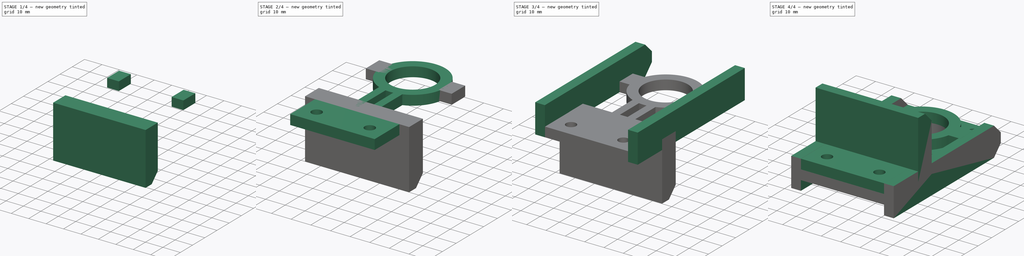
[diagram: build sequence overview — one tinted view per stage of 4, left to right]
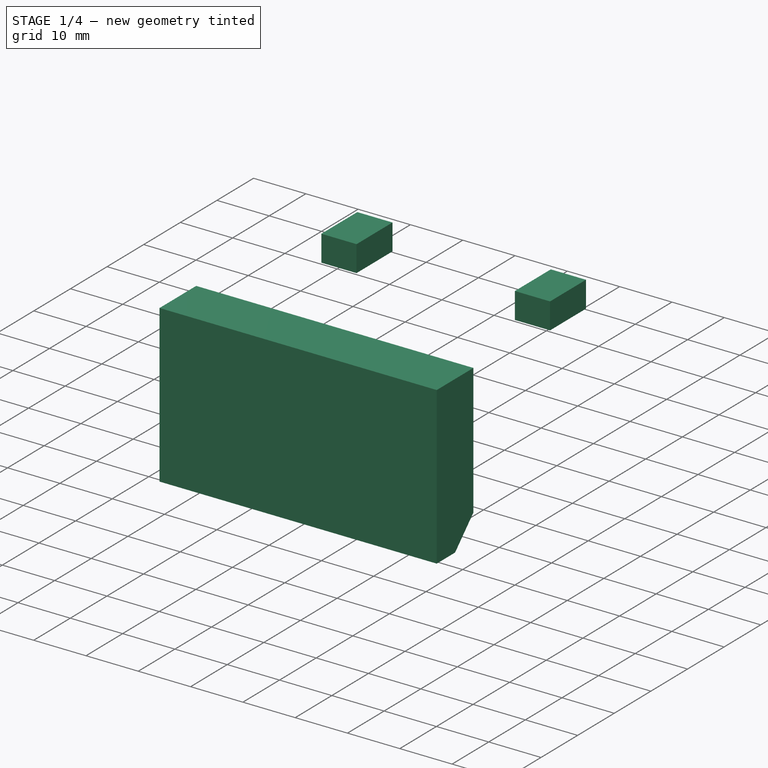
[diagram: stage 1 of 4 — iso view after this stage's code; geometry added in this stage tinted green]
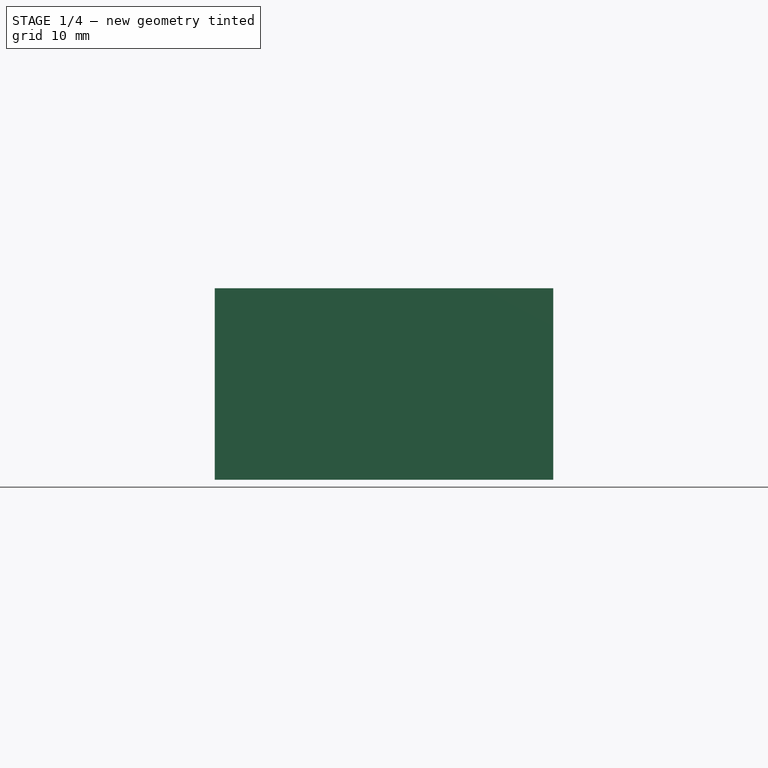
[diagram: stage 1 of 4 — front view after this stage's code; geometry added in this stage tinted green]
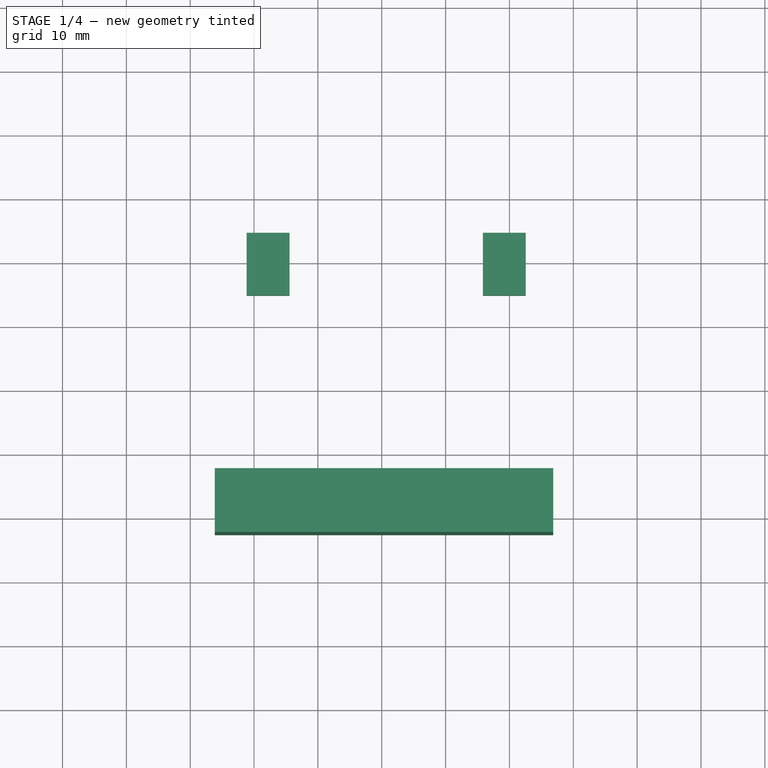
[diagram: stage 1 of 4 — top view after this stage's code; geometry added in this stage tinted green]
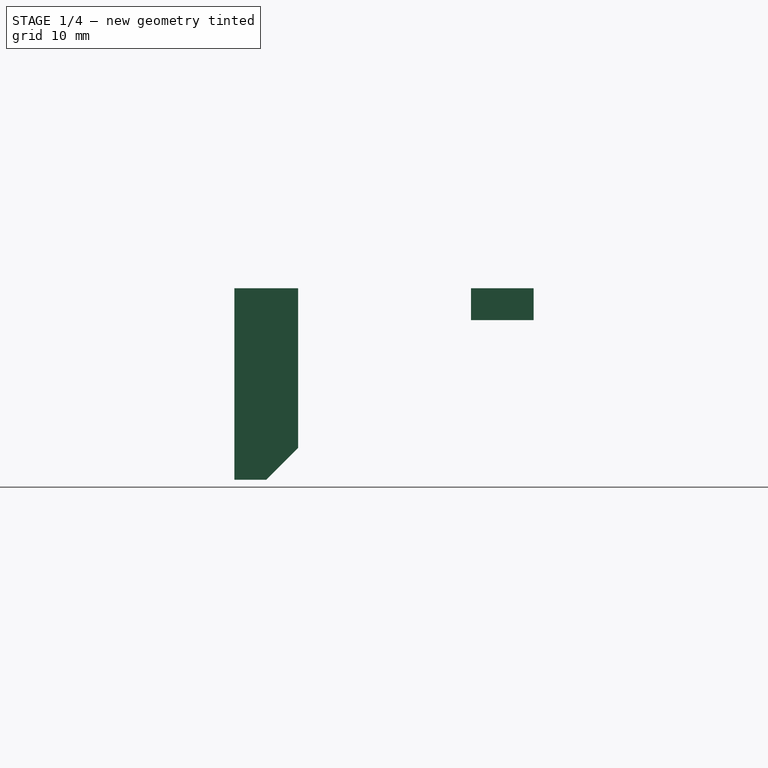
[diagram: stage 1 of 4 — right view after this stage's code; geometry added in this stage tinted green]
FCSTD DOCUMENT  (FreeCAD 0.16R6703 (Git))
Label: Z
License: All rights reserved
LicenseURL: http://en.wikipedia.org/wiki/All_rights_reserved
objects: Sketcher::SketchObject×9, PartDesign::Pad×9, PartDesign::Chamfer×3, Part::MultiFuse×1, Part::Mirroring×1
note: 32 computed .brp shape members not serialized (recipe doc carries the construction recipe); baked Part::Feature solids carry a one-line shape summary decoded from their .brp

FEATURE [Sketcher::SketchObject] Sketch006
  sketch-geometry (4):
    g0: LineSegment StartX=-26.1487 StartY=-12.5616 StartZ=0 EndX=26.8513 EndY=-12.5616 EndZ=0
    g1: LineSegment StartX=26.8513 StartY=-12.5616 StartZ=0 EndX=26.8513 EndY=-22.5616 EndZ=0
    g2: LineSegment StartX=26.8513 StartY=-22.5616 StartZ=0 EndX=-26.1487 EndY=-22.5616 EndZ=0
    g3: LineSegment StartX=-26.1487 StartY=-22.5616 StartZ=0 EndX=-26.1487 EndY=-12.5616 EndZ=0
  constraints (10):
    c: Coincident(g0,g1)
    c: Coincident(g1,g2)
    c: Coincident(g2,g3)
    c: Coincident(g3,g0)
    c: Horizontal(g0)
    c: Horizontal(g2)
    c: Vertical(g1)
    c: Vertical(g3)
    c: DistanceX(g0,g0) = 53
    c: DistanceY(g3,g3) = 10
FEATURE [PartDesign::Pad] Pad006
  Length = 30
  Length2 = 100
  Reversed = true
  Sketch = -> Sketch006
  Type = 0
FEATURE [PartDesign::Chamfer] Chamfer002
  Base = -> Pad006 [Edge4]
  Size = 5
FEATURE [Sketcher::SketchObject] Sketch007
  sketch-geometry (4):
    g0: LineSegment StartX=-21.1705 StartY=14.5133 StartZ=0 EndX=-14.4451 EndY=14.5133 EndZ=0
    g1: LineSegment StartX=-14.4451 StartY=14.5133 StartZ=0 EndX=-14.4451 EndY=24.319 EndZ=0
    g2: LineSegment StartX=-14.4451 StartY=24.319 StartZ=0 EndX=-21.1705 EndY=24.319 EndZ=0
    g3: LineSegment StartX=-21.1705 StartY=24.319 StartZ=0 EndX=-21.1705 EndY=14.5133 EndZ=0
  constraints (8):
    c: Coincident(g0,g1)
    c: Coincident(g1,g2)
    c: Coincident(g2,g3)
    c: Coincident(g3,g0)
    c: Horizontal(g0)
    c: Horizontal(g2)
    c: Vertical(g1)
    c: Vertical(g3)
FEATURE [PartDesign::Pad] Pad007
  Length = 5
  Length2 = 100
  Reversed = true
  Sketch = -> Sketch007
  Type = 0
FEATURE [Sketcher::SketchObject] Sketch008
  Placement = pos=(37,0,0) rot=(0,0,1;0rad)
  sketch-geometry (4):
    g0: LineSegment StartX=-21.1705 StartY=14.5133 StartZ=0 EndX=-14.4451 EndY=14.5133 EndZ=0
    g1: LineSegment StartX=-14.4451 StartY=14.5133 StartZ=0 EndX=-14.4451 EndY=24.319 EndZ=0
    g2: LineSegment StartX=-14.4451 StartY=24.319 StartZ=0 EndX=-21.1705 EndY=24.319 EndZ=0
    g3: LineSegment StartX=-21.1705 StartY=24.319 StartZ=0 EndX=-21.1705 EndY=14.5133 EndZ=0
  constraints (8):
    c: Coincident(g0,g1)
    c: Coincident(g1,g2)
    c: Coincident(g2,g3)
    c: Coincident(g3,g0)
    c: Horizontal(g0)
    c: Horizontal(g2)
    c: Vertical(g1)
    c: Vertical(g3)
FEATURE [PartDesign::Pad] Pad008
  Length = 5
  Length2 = 100
  Placement = pos=(37,0,0) rot=(0,0,1;0rad)
  Reversed = true
  Sketch = -> Sketch008
  Type = 0
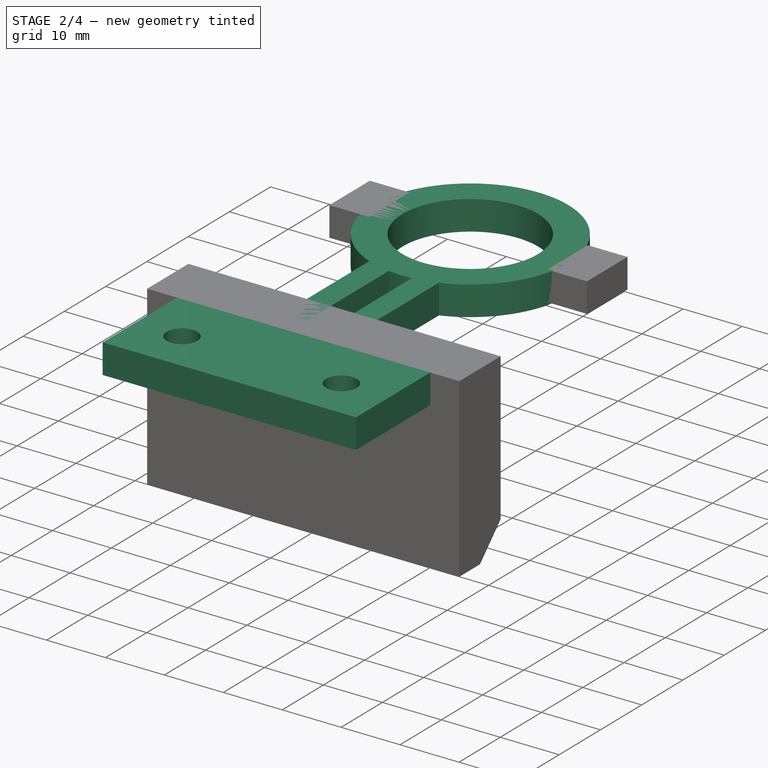
[diagram: stage 2 of 4 — iso view after this stage's code; geometry added in this stage tinted green]
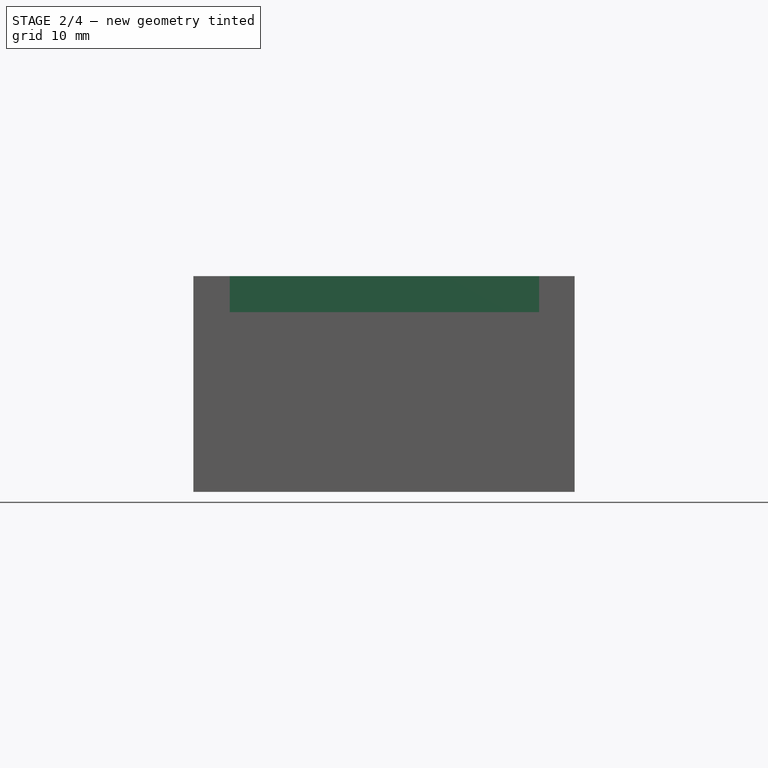
[diagram: stage 2 of 4 — front view after this stage's code; geometry added in this stage tinted green]
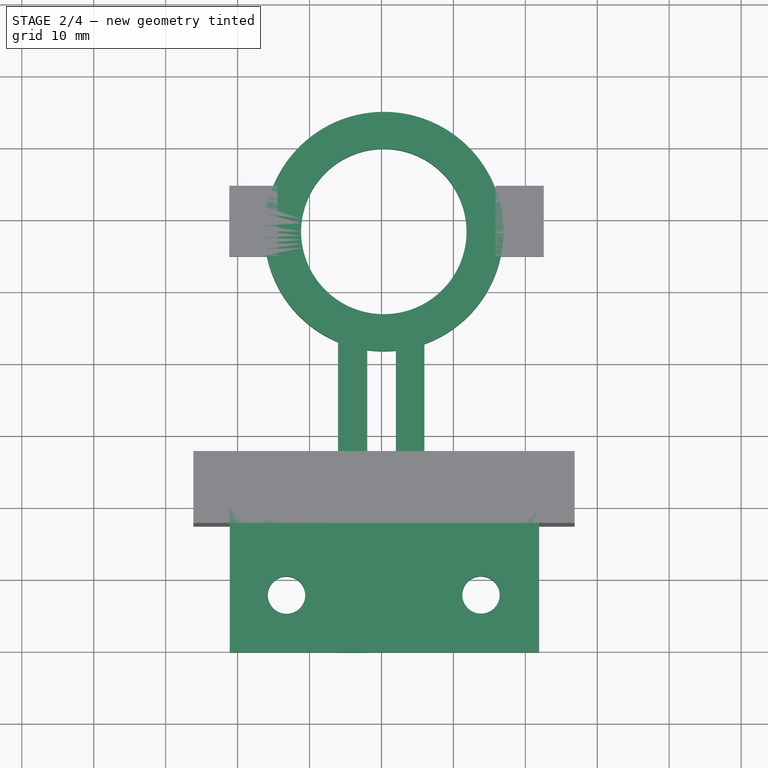
[diagram: stage 2 of 4 — top view after this stage's code; geometry added in this stage tinted green]
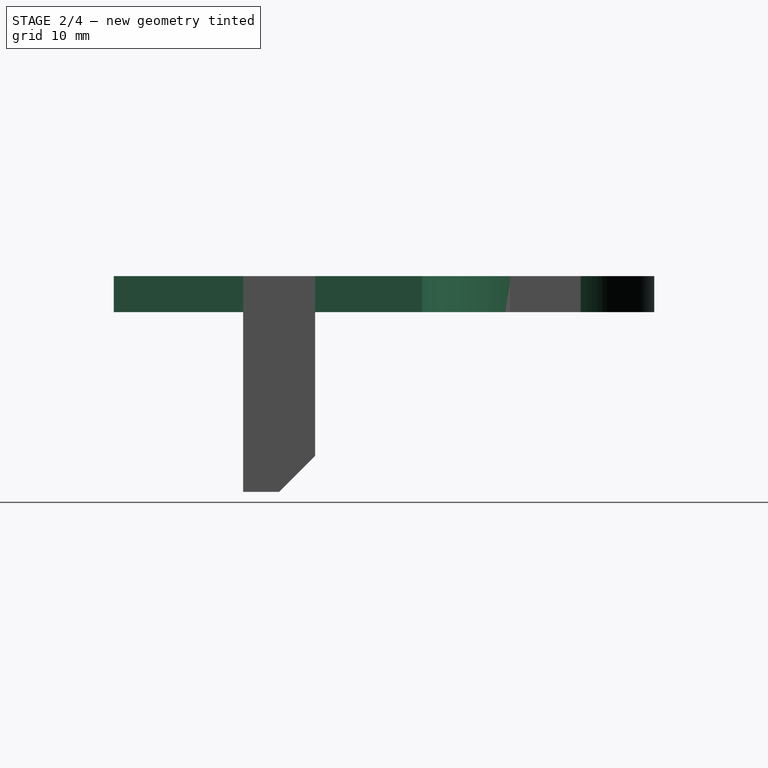
[diagram: stage 2 of 4 — right view after this stage's code; geometry added in this stage tinted green]
FEATURE [Sketcher::SketchObject] Sketch003
  sketch-geometry (2):
    g0: Circle CenterX=0.326646 CenterY=17.9679 CenterZ=0 NormalX=0 NormalY=0 NormalZ=1 Radius=11.501
    g1: Circle CenterX=0.326646 CenterY=17.9679 CenterZ=0 NormalX=0 NormalY=0 NormalZ=1 Radius=16.6305
  constraints (1):
    c: Coincident(g1,g0)
FEATURE [PartDesign::Pad] Pad003
  Length = 5
  Length2 = 100
  Reversed = true
  Sketch = -> Sketch003
  Type = 0
FEATURE [Sketcher::SketchObject] Sketch004
  sketch-geometry (8):
    g0: LineSegment StartX=-1.98552 StartY=4.72494 StartZ=0 EndX=-6.04366 EndY=4.72494 EndZ=0
    g1: LineSegment StartX=-6.04366 StartY=4.72494 StartZ=0 EndX=-6.04366 EndY=-40.5598 EndZ=0
    g2: LineSegment StartX=-6.04366 StartY=-40.5598 StartZ=0 EndX=-1.98552 EndY=-40.5598 EndZ=0
    g3: LineSegment StartX=-1.98552 StartY=-40.5598 StartZ=0 EndX=-1.98552 EndY=4.72494 EndZ=0
    g4: LineSegment StartX=2.00805 StartY=4.57408 StartZ=0 EndX=5.96279 EndY=4.57408 EndZ=0
    g5: LineSegment StartX=5.96279 StartY=4.57408 StartZ=0 EndX=5.96279 EndY=-40.5373 EndZ=0
    g6: LineSegment StartX=5.96279 StartY=-40.5373 StartZ=0 EndX=2.00805 EndY=-40.5373 EndZ=0
    g7: LineSegment StartX=2.00805 StartY=-40.5373 StartZ=0 EndX=2.00805 EndY=4.57408 EndZ=0
  constraints (16):
    c: Coincident(g0,g1)
    c: Coincident(g1,g2)
    c: Coincident(g2,g3)
    c: Coincident(g3,g0)
    c: Horizontal(g0)
    c: Horizontal(g2)
    c: Vertical(g1)
    c: Vertical(g3)
    c: Coincident(g4,g5)
    c: Coincident(g5,g6)
    c: Coincident(g6,g7)
    c: Coincident(g7,g4)
    c: Horizontal(g4)
    c: Horizontal(g6)
    c: Vertical(g5)
    c: Vertical(g7)
FEATURE [PartDesign::Pad] Pad004
  Length = 5
  Length2 = 100
  Reversed = true
  Sketch = -> Sketch004
  Type = 0
FEATURE [Sketcher::SketchObject] Sketch005
  sketch-geometry (6):
    g0: LineSegment StartX=-21.0883 StartY=-20.547 StartZ=0 EndX=21.9117 EndY=-20.547 EndZ=0
    g1: LineSegment StartX=21.9117 StartY=-20.547 StartZ=0 EndX=21.9117 EndY=-40.547 EndZ=0
    g2: LineSegment StartX=21.9117 StartY=-40.547 StartZ=0 EndX=-21.0883 EndY=-40.547 EndZ=0
    g3: LineSegment StartX=-21.0883 StartY=-40.547 StartZ=0 EndX=-21.0883 EndY=-20.547 EndZ=0
    g4: Circle CenterX=-13.1968 CenterY=-32.5843 CenterZ=0 NormalX=0 NormalY=0 NormalZ=1 Radius=2.59992
    g5: Circle CenterX=13.8359 CenterY=-32.5631 CenterZ=0 NormalX=0 NormalY=0 NormalZ=1 Radius=2.59992
  constraints (10):
    c: Coincident(g0,g1)
    c: Coincident(g1,g2)
    c: Coincident(g2,g3)
    c: Coincident(g3,g0)
    c: Horizontal(g0)
    c: Horizontal(g2)
    c: Vertical(g1)
    c: Vertical(g3)
    c: DistanceY(g3,g3) = 20
    c: DistanceX(g2,g2) = 43
FEATURE [PartDesign::Pad] Pad005
  Length = 5
  Length2 = 100
  Reversed = true
  Sketch = -> Sketch005
  Type = 0
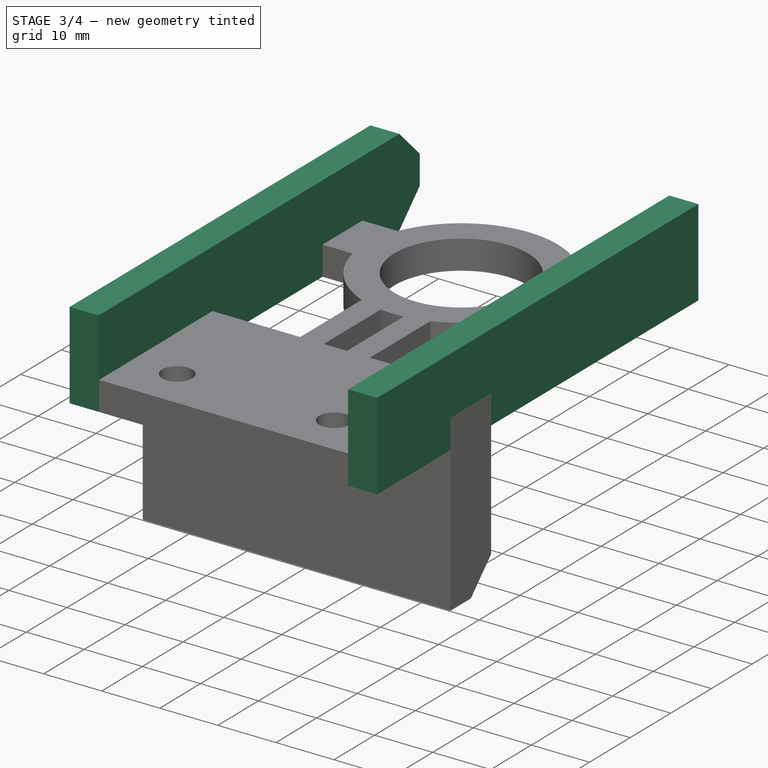
[diagram: stage 3 of 4 — iso view after this stage's code; geometry added in this stage tinted green]
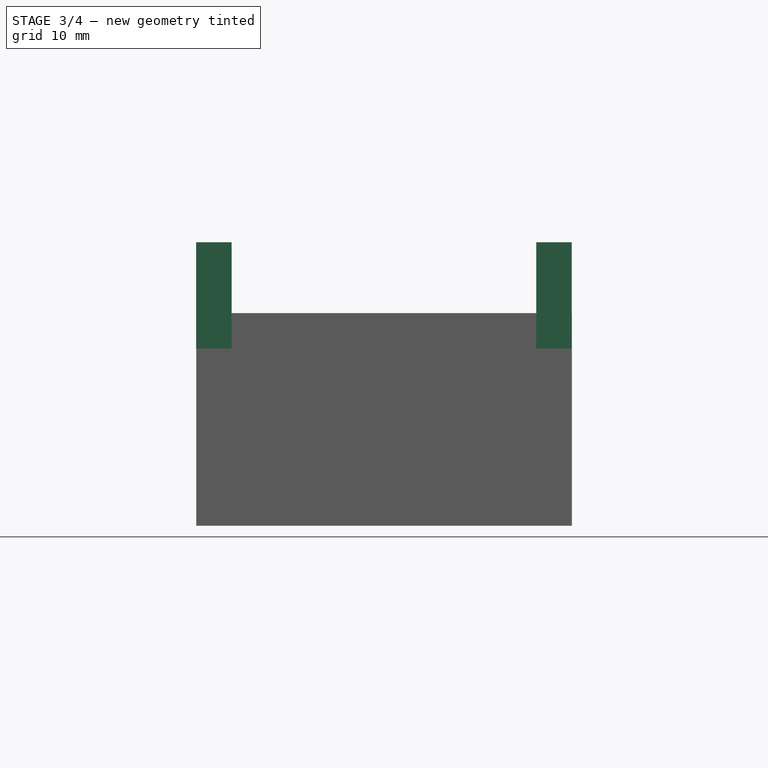
[diagram: stage 3 of 4 — front view after this stage's code; geometry added in this stage tinted green]
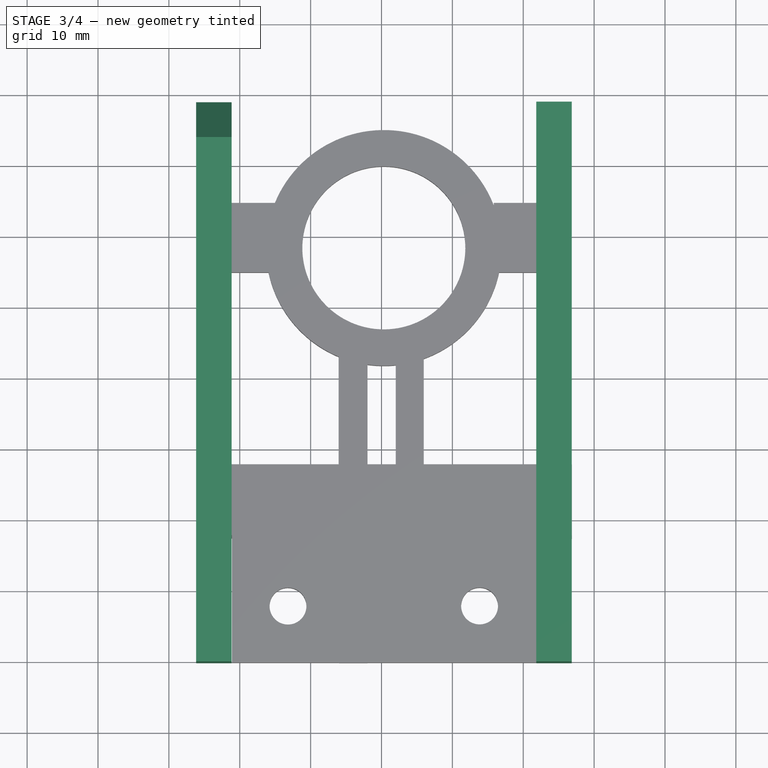
[diagram: stage 3 of 4 — top view after this stage's code; geometry added in this stage tinted green]
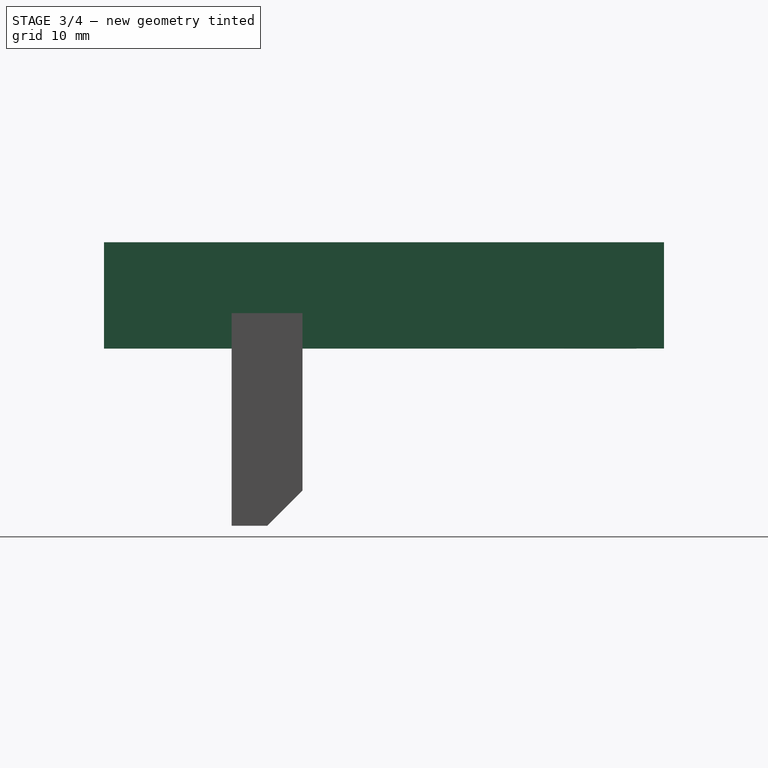
[diagram: stage 3 of 4 — right view after this stage's code; geometry added in this stage tinted green]
FEATURE [Sketcher::SketchObject] Sketch001
  Placement = pos=(21.835,0.031,0) rot=(0.57735,0.57735,0.57735;2.0944rad)
  sketch-geometry (4):
    g0: LineSegment StartX=-40.5987 StartY=-4.98938 StartZ=0 EndX=38.4013 EndY=-4.98938 EndZ=0
    g1: LineSegment StartX=38.4013 StartY=-4.98938 StartZ=0 EndX=38.4013 EndY=10.0106 EndZ=0
    g2: LineSegment StartX=38.4013 StartY=10.0106 StartZ=0 EndX=-40.5987 EndY=10.0106 EndZ=0
    g3: LineSegment StartX=-40.5987 StartY=10.0106 StartZ=0 EndX=-40.5987 EndY=-4.98938 EndZ=0
  constraints (10):
    c: Coincident(g0,g1)
    c: Coincident(g1,g2)
    c: Coincident(g2,g3)
    c: Coincident(g3,g0)
    c: Horizontal(g0)
    c: Horizontal(g2)
    c: Vertical(g1)
    c: Vertical(g3)
    c: DistanceX(g2,g2) = 79
    c: DistanceY(g3,g3) = 15
FEATURE [PartDesign::Pad] Pad001
  Length = 5
  Length2 = 100
  Placement = pos=(21.835,0.031,0) rot=(0.57735,0.57735,0.57735;2.0944rad)
  Sketch = -> Sketch001
  Type = 0
FEATURE [Sketcher::SketchObject] Sketch002
  Placement = pos=(-21.15,0.031,0) rot=(0.57735,0.57735,0.57735;2.0944rad)
  sketch-geometry (4):
    g0: LineSegment StartX=-40.5987 StartY=-4.98938 StartZ=0 EndX=38.4013 EndY=-4.98938 EndZ=0
    g1: LineSegment StartX=38.4013 StartY=-4.98938 StartZ=0 EndX=38.4013 EndY=10.0106 EndZ=0
    g2: LineSegment StartX=38.4013 StartY=10.0106 StartZ=0 EndX=-40.5987 EndY=10.0106 EndZ=0
    g3: LineSegment StartX=-40.5987 StartY=10.0106 StartZ=0 EndX=-40.5987 EndY=-4.98938 EndZ=0
  constraints (10):
    c: Coincident(g0,g1)
    c: Coincident(g1,g2)
    c: Coincident(g2,g3)
    c: Coincident(g3,g0)
    c: Horizontal(g0)
    c: Horizontal(g2)
    c: Vertical(g1)
    c: Vertical(g3)
    c: DistanceX(g2,g2) = 79
    c: DistanceY(g3,g3) = 15
FEATURE [PartDesign::Pad] Pad002
  Length = 5
  Length2 = 100
  Placement = pos=(-21.15,0.031,0) rot=(0.57735,0.57735,0.57735;2.0944rad)
  Reversed = true
  Sketch = -> Sketch002
  Type = 0
FEATURE [PartDesign::Chamfer] Chamfer001
  Base = -> Pad002 [Edge5,Edge2]
  Placement = pos=(-21.15,0.031,0) rot=(0.57735,0.57735,0.57735;2.0944rad)
  Size = 5
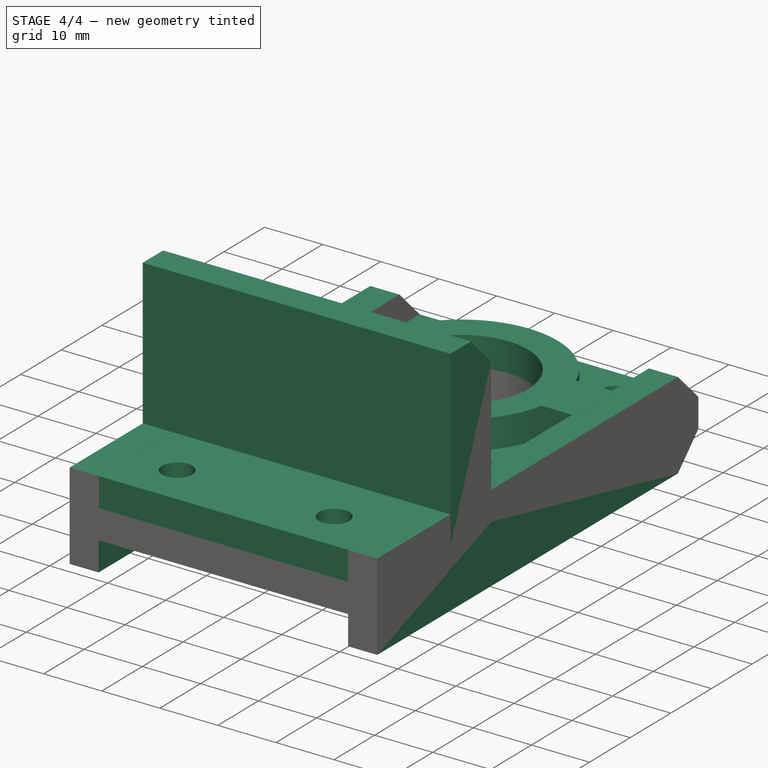
[diagram: stage 4 of 4 — iso view after this stage's code; geometry added in this stage tinted green]
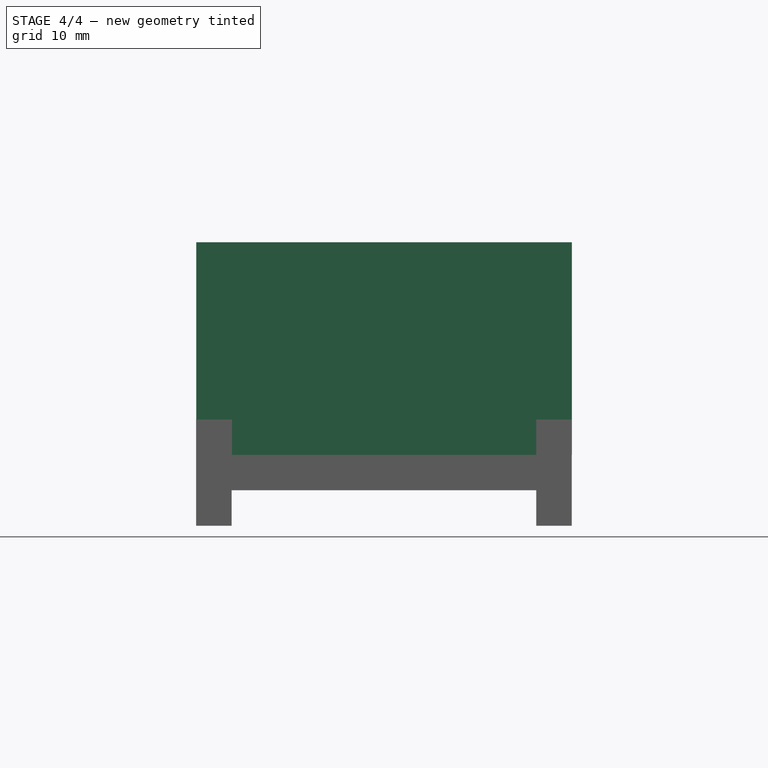
[diagram: stage 4 of 4 — front view after this stage's code; geometry added in this stage tinted green]
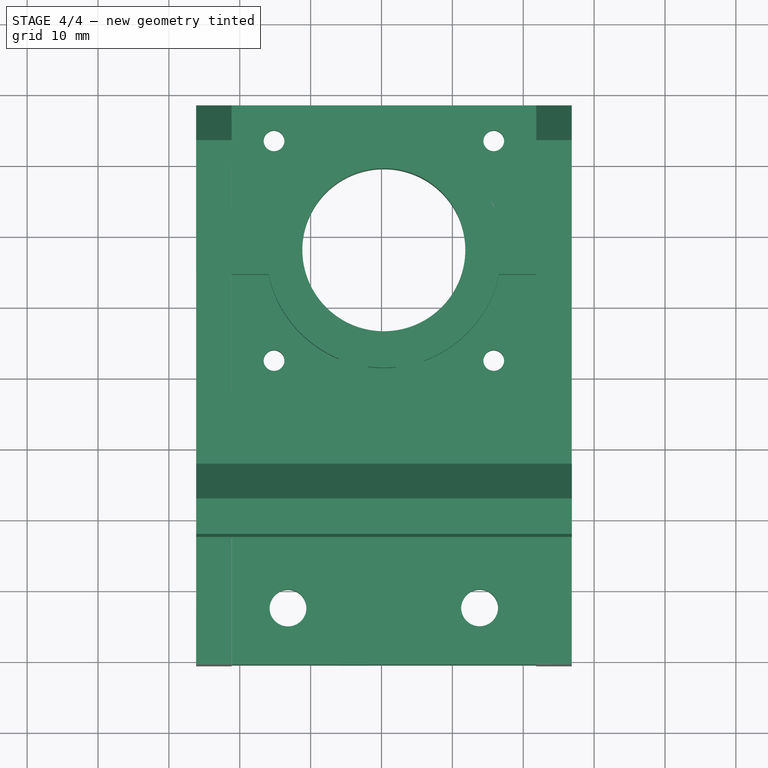
[diagram: stage 4 of 4 — top view after this stage's code; geometry added in this stage tinted green]
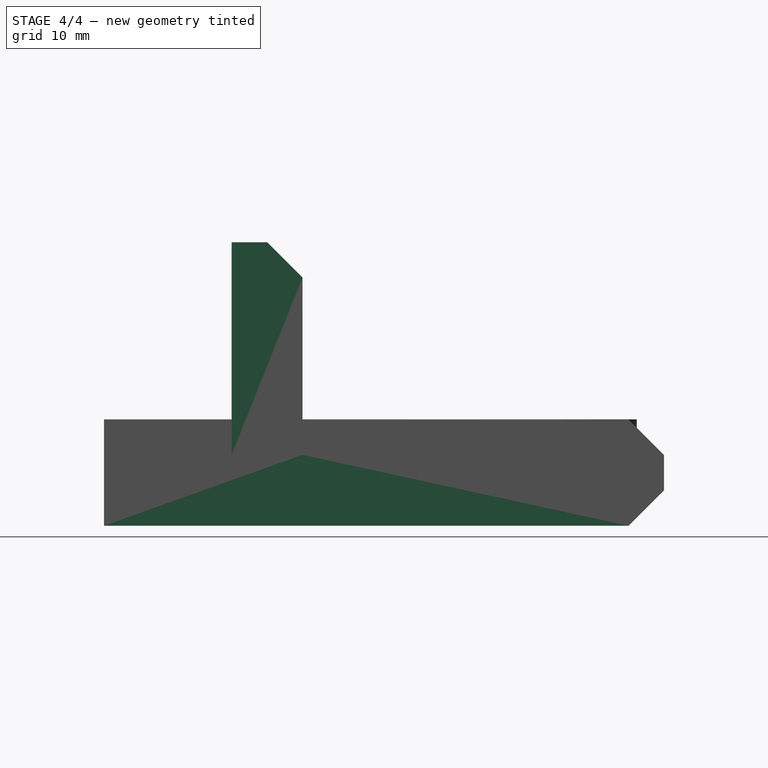
[diagram: stage 4 of 4 — right view after this stage's code; geometry added in this stage tinted green]
FEATURE [Sketcher::SketchObject] Sketch
  sketch-geometry (11):
    g0: LineSegment StartX=-21.1637 StartY=38.4323 StartZ=0 EndX=21.8363 EndY=38.4323 EndZ=0
    g1: LineSegment StartX=21.8363 StartY=38.4323 StartZ=0 EndX=21.8363 EndY=-40.5677 EndZ=0
    g2: LineSegment StartX=21.8363 StartY=-40.5677 StartZ=0 EndX=-21.1637 EndY=-40.5677 EndZ=0
    g3: LineSegment StartX=-21.1637 StartY=-40.5677 StartZ=0 EndX=-21.1637 EndY=38.4323 EndZ=0
    g4: Circle CenterX=-15.1637 CenterY=2.43234 CenterZ=0 NormalX=0 NormalY=0 NormalZ=1 Radius=1.46627
    g5: Circle CenterX=15.8363 CenterY=33.4323 CenterZ=0 NormalX=0 NormalY=0 NormalZ=1 Radius=1.46627
    g6: Circle CenterX=15.8363 CenterY=2.43234 CenterZ=0 NormalX=0 NormalY=0 NormalZ=1 Radius=1.46627
    g7: Circle CenterX=-15.1637 CenterY=33.4323 CenterZ=0 NormalX=0 NormalY=0 NormalZ=1 Radius=1.46627
    g8: Circle CenterX=-13.1637 CenterY=-32.5677 CenterZ=0 NormalX=0 NormalY=0 NormalZ=1 Radius=3.5
    g9: Circle CenterX=13.8363 CenterY=-32.5677 CenterZ=0 NormalX=0 NormalY=0 NormalZ=1 Radius=3.5
    g10: Circle CenterX=0.336268 CenterY=17.9323 CenterZ=0 NormalX=0 NormalY=0 NormalZ=1 Radius=11.5419
  constraints (26):
    c: Coincident(g0,g1)
    c: Coincident(g1,g2)
    c: Coincident(g2,g3)
    c: Coincident(g3,g0)
    c: Horizontal(g0)
    c: Horizontal(g2)
    c: Vertical(g1)
    c: Vertical(g3)
    c: DistanceX(g0,g0) = 43
    c: DistanceY(g3,g3) = 79
    c: Distance(g7,g5) = 31
    c: Distance(g7,g4) = 31
    c: Distance(g4,g6) = 31
    c: Distance(g5,g6) = 31
    c: Distance(g7,g0) = 5
    c: Distance(g5,g0) = 5
    c: Distance(g7,g3) = 6
    c: Distance(g4,g3) = 6
    c: Distance(g8,g2) = 8
    c: Distance(g8,g3) = 8
    c: Distance(g9,g1) = 8
    c: Distance(g9,g2) = 8
    c: Distance(g10,g1) = 21.5
    c: Distance(g10,g0) = 20.5
    c: Radius(g8) = 3.5
    c: Radius(g9) = 3.5
FEATURE [PartDesign::Pad] Pad
  Length = 5
  Length2 = 100
  Sketch = -> Sketch
  Type = 0
FEATURE [PartDesign::Chamfer] Chamfer
  Base = -> Pad001 [Edge5,Edge2]
  Placement = pos=(21.835,0.031,0) rot=(0.57735,0.57735,0.57735;2.0944rad)
  Size = 5
FEATURE [Part::MultiFuse] Fusion
  Shapes = -> [Pad008,Pad007,Pad005,Pad004,Pad003,Chamfer002,Chamfer001,Chamfer,Pad]
FEATURE [Part::Mirroring] Part__Mirroring  label="Fusion (Mirror #1)"
  Base = (0,0,0)
  Normal = (0,0,1)
  Source = -> Fusion
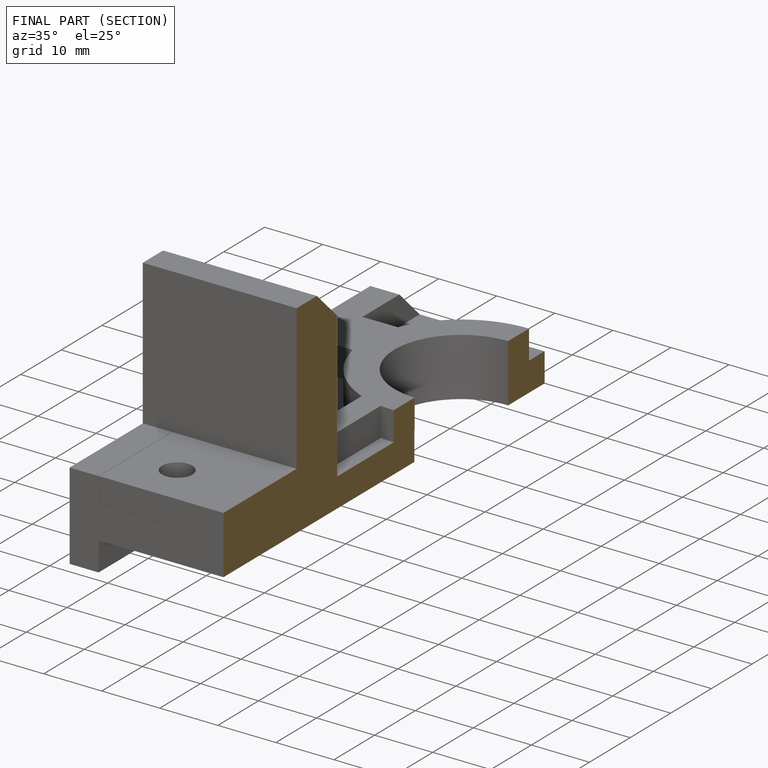
[diagram: finished part — half-section view (interior)]
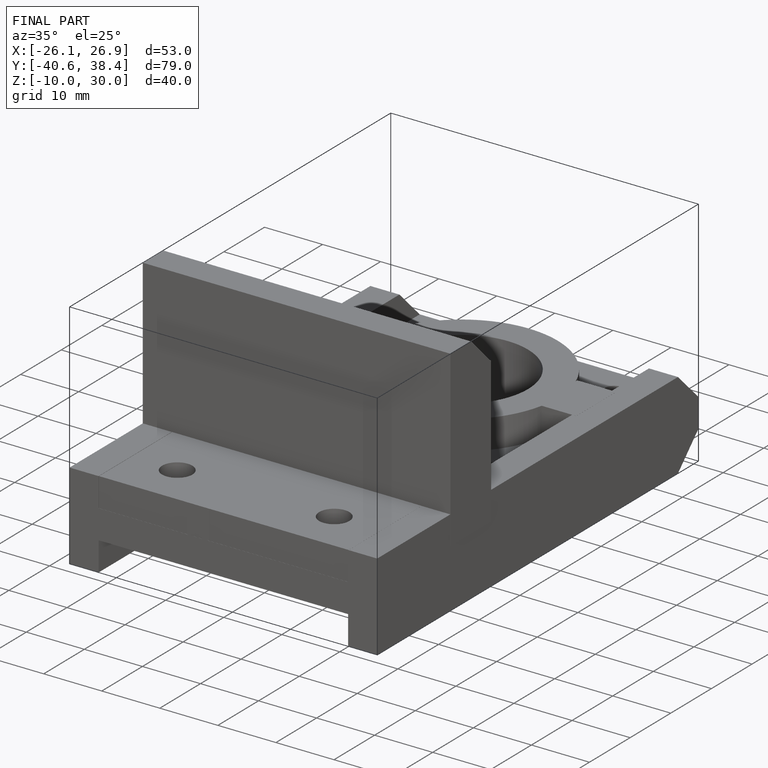
[diagram: finished part — iso view with bounding-box wireframe]
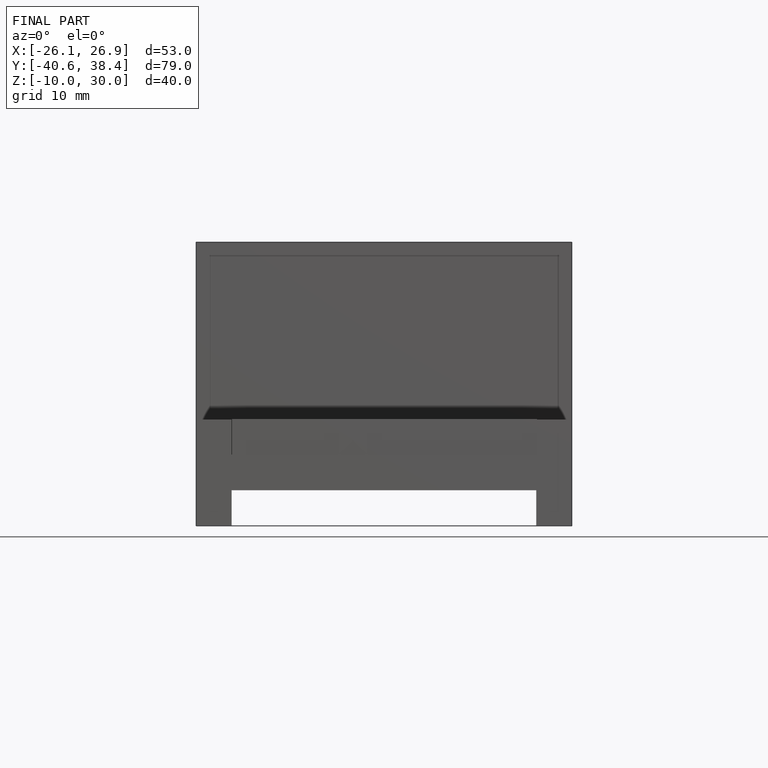
[diagram: finished part — front view with bounding-box wireframe]
